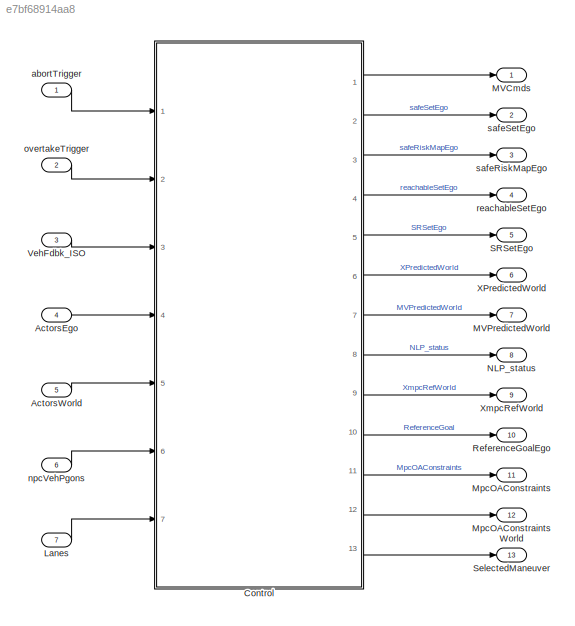
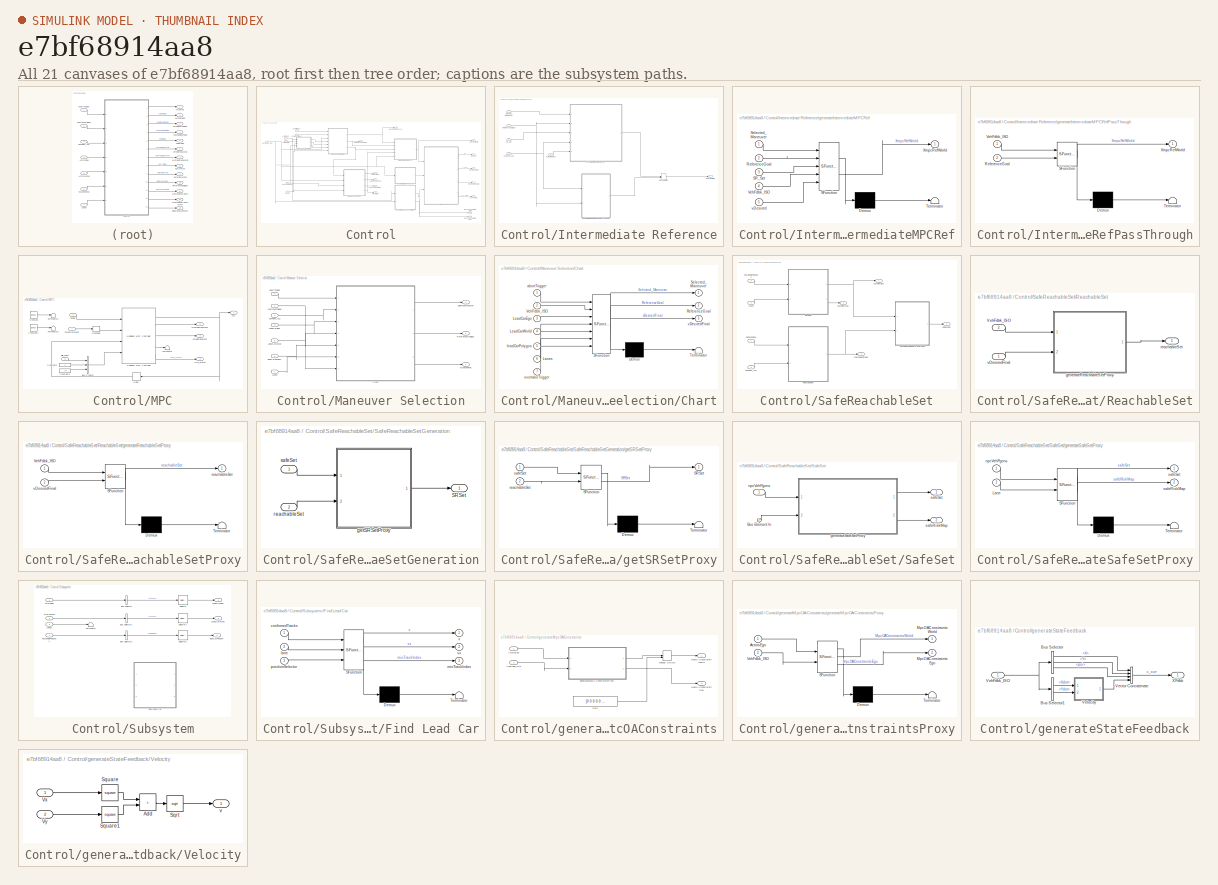
[diagram: thumbnail index - all 21 canvases of the model, root first then tree order]
MODEL slx_e7bf68914aa8
KIND model
CONFIG AbsTol = auto
CONFIG EnableMultiTasking = off
CONFIG FixedStep = controllerSampleTime
CONFIG MaxStep = auto
CONFIG MinStep = auto
CONFIG RelTol = 1e-3
CONFIG SampleTimeConstraint = Unconstrained
CONFIG SolverName = FixedStepDiscrete
CONFIG StartTime = 0.0
CONFIG StopTime = 10.0
BLOCK [Inport] ActorsEgo
  BusOutputAsStruct = on
  OutDataTypeStr = Bus: BusActors
  Port = 4
  PortDimensions = [1 1]
BLOCK [Inport] ActorsWorld
  BusOutputAsStruct = on
  OutDataTypeStr = Bus: BusVehicleToWorldActors
  Port = 5
  PortDimensions = [1 1]
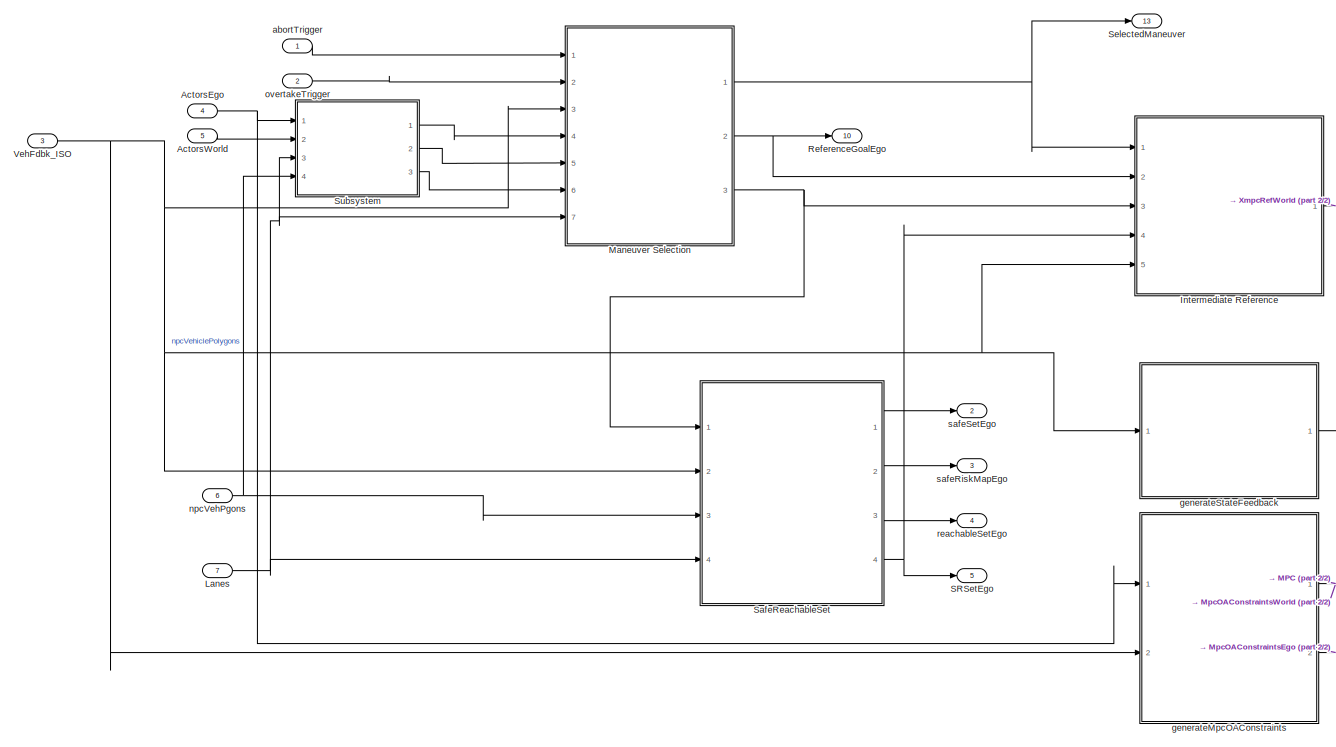
[diagram: Control - part 1/2, center side, full height]
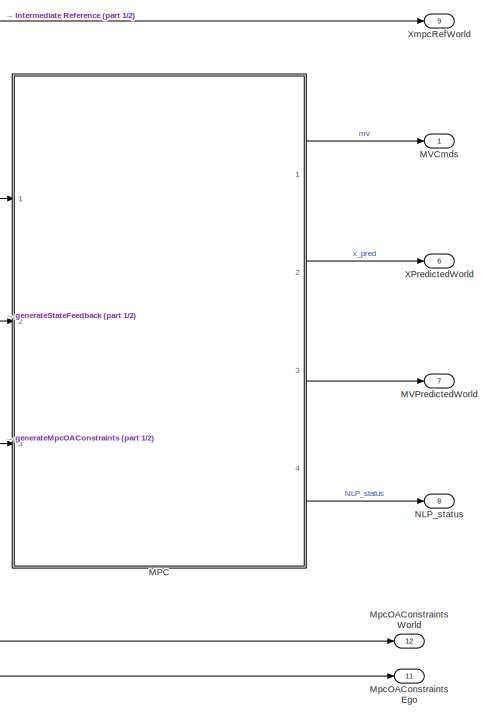
[diagram: Control - part 2/2, right side, full height]
BLOCK [SubSystem] Control
  Ports = [7, 13]
  RequestExecContextInheritance = off
BLOCK [Inport] Control/ActorsEgo
  Port = 4
BLOCK [Inport] Control/ActorsWorld
  Port = 5
BLOCK [SubSystem] Control/Intermediate Reference
  Ports = [5, 1]
  RequestExecContextInheritance = off
BLOCK [ManualSwitch] Control/Intermediate Reference/Manual Switch
BLOCK [Inport] Control/Intermediate Reference/ReferenceGoalEgo
  Port = 2
BLOCK [Inport] Control/Intermediate Reference/SR_Set
  Port = 4
BLOCK [Inport] Control/Intermediate Reference/Selected_Maneuver
BLOCK [Inport] Control/Intermediate Reference/VehFdbk_ISO
  Port = 5
BLOCK [Outport] Control/Intermediate Reference/XmpcRefWorld
BLOCK [SubSystem] Control/Intermediate Reference/generateIntermediateMPCRef
  ErrorFcn = Stateflow.Translate.translate
  PermitHierarchicalResolution = ExplicitOnly
  Ports = [5, 1]
  RequestExecContextInheritance = off
  SFBlockType = MATLAB Function
  TreatAsAtomicUnit = on
BLOCK [Demux] Control/Intermediate Reference/generateIntermediateMPCRef/ Demux 
  Outputs = 1
  Ports = [1, 1]
BLOCK [S-Function] Control/Intermediate Reference/generateIntermediateMPCRef/ SFunction 
  EnableBusSupport = on
  FunctionName = sf_sfun
  PortCounts = [5 2]
  Ports = [5, 2]
  SFcnIsStateOwnerBlock = off
  SFunctionDeploymentMode = off
  Tag = Stateflow S-Function 6
BLOCK [Terminator] Control/Intermediate Reference/generateIntermediateMPCRef/ Terminator 
BLOCK [Inport] Control/Intermediate Reference/generateIntermediateMPCRef/ReferenceGoal
  Port = 2
BLOCK [Inport] Control/Intermediate Reference/generateIntermediateMPCRef/SR_Set
  Port = 3
BLOCK [Inport] Control/Intermediate Reference/generateIntermediateMPCRef/Selected_Maneuver
BLOCK [Inport] Control/Intermediate Reference/generateIntermediateMPCRef/VehFdbk_ISO
  Port = 4
BLOCK [Outport] Control/Intermediate Reference/generateIntermediateMPCRef/XmpcRefWorld
BLOCK [Inport] Control/Intermediate Reference/generateIntermediateMPCRef/vDesired
  Port = 5
BLOCK [SubSystem] Control/Intermediate Reference/generateIntermediateMPCRefPassThrough
  Commented = on
  ErrorFcn = Stateflow.Translate.translate
  PermitHierarchicalResolution = ExplicitOnly
  Ports = [2, 1]
  RequestExecContextInheritance = off
  SFBlockType = MATLAB Function
  TreatAsAtomicUnit = on
BLOCK [Demux] Control/Intermediate Reference/generateIntermediateMPCRefPassThrough/ Demux 
  Outputs = 1
  Ports = [1, 1]
BLOCK [S-Function] Control/Intermediate Reference/generateIntermediateMPCRefPassThrough/ SFunction 
  EnableBusSupport = on
  FunctionName = sf_sfun
  PortCounts = [2 2]
  Ports = [2, 2]
  SFcnIsStateOwnerBlock = off
  SFunctionDeploymentMode = off
  Tag = Stateflow S-Function 7
BLOCK [Terminator] Control/Intermediate Reference/generateIntermediateMPCRefPassThrough/ Terminator 
BLOCK [Inport] Control/Intermediate Reference/generateIntermediateMPCRefPassThrough/ReferenceGoal
  Port = 2
BLOCK [Inport] Control/Intermediate Reference/generateIntermediateMPCRefPassThrough/VehFdbk_ISO
BLOCK [Outport] Control/Intermediate Reference/generateIntermediateMPCRefPassThrough/XmpcRefWorld
BLOCK [Inport] Control/Intermediate Reference/vDesiredFinal
  Port = 3
BLOCK [Inport] Control/Lanes
  Port = 7
BLOCK [SubSystem] Control/MPC
  Ports = [3, 4]
  RequestExecContextInheritance = off
BLOCK [BusCreator] Control/MPC/Bus Creator
  DisplayOption = bar
  InheritFromInputs = off
  Inputs = 3
  NonVirtualBus = on
  OutDataTypeStr = Bus: MPCparams
  Ports = [3, 1]
BLOCK [Constant] Control/MPC/Constant
  Value = [0 0 0 0]
BLOCK [Constant] Control/MPC/Constant1
  Value = [0 0 0 0]
BLOCK [Constant] Control/MPC/Constant2
  Value = L
BLOCK [Constant] Control/MPC/Constant3
  Value = l_F
BLOCK [Delay] Control/MPC/Delay
  DelayLength = 1
  InputPortMap = u0
  Ports = [1, 1]
BLOCK [Outport] Control/MPC/MVPredictedWorld
  Port = 3
BLOCK [Outport] Control/MPC/NLP_status
  Port = 4
BLOCK [Reference] Control/MPC/Nonlinear MPC Controller  REF=mpclib/Nonlinear MPC Controller  (lib defined in mdl_ae329e0e0455)
  Ports = [4, 5]
  SCDEnableBlockLinearizationSpecification = on
  SourceBlock = mpclib/Nonlinear MPC Controller
  SourceProductBaseCode = MP
  SourceType = NonlinearMPC
BLOCK [Reshape] Control/MPC/Reshape
  OutputDimensionality = Row vector (2-D)
  Ports = [1, 1]
BLOCK [Terminator] Control/MPC/Terminator
BLOCK [Terminator] Control/MPC/Terminator1
BLOCK [Terminator] Control/MPC/Terminator2
BLOCK [Inport] Control/MPC/XFdbk
  Port = 2
BLOCK [Outport] Control/MPC/XPredictedWorld
  Port = 2
BLOCK [Inport] Control/MPC/XmpcRefWorld
BLOCK [Inport] Control/MPC/ellip_coeff
  Port = 3
BLOCK [Outport] Control/MPC/mv
BLOCK [Outport] Control/MVCmds
BLOCK [Outport] Control/MVPredictedWorld
  Port = 7
BLOCK [SubSystem] Control/Maneuver Selection
  Ports = [7, 3]
  RequestExecContextInheritance = off
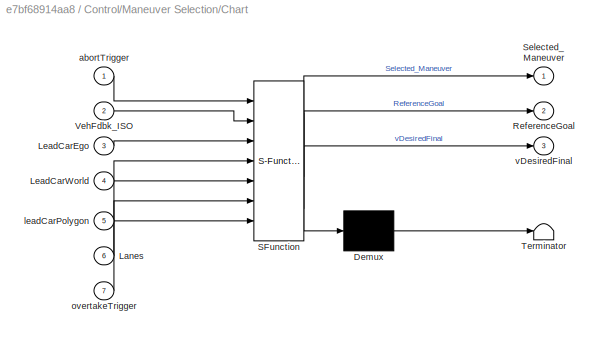
BLOCK [SubSystem] Control/Maneuver Selection/Chart
  ErrorFcn = Stateflow.Translate.translate
  PermitHierarchicalResolution = ExplicitOnly
  PortSchema = {"entries":[{"content":{"sides":[{"content":{"connectorIds":["In1","In7","In2","In3","In4","In5","In6"]},"type":"ConnectorPlacement.EquallySpacedRectSide","uuid":"0ec3284f-e4d1-4fcf-868c-49b24c185a74"},{"content":{"connectorIds":["Out1","Out2","Out3"],"side":"RIGHT"},"type":"ConnectorPlacement.EquallySpacedRectSide","uuid":"f716af92-5763-46ed-adf9-d401eac52e97"},{"content":{"connectorIds":[],"side...<+434ch>
  Ports = [7, 3]
  RequestExecContextInheritance = off
  SFBlockType = Chart
  TreatAsAtomicUnit = on
BLOCK [Demux] Control/Maneuver Selection/Chart/ Demux 
  Outputs = 1
  Ports = [1, 1]
BLOCK [S-Function] Control/Maneuver Selection/Chart/ SFunction 
  EnableBusSupport = on
  FunctionName = sf_sfun
  Parameters = distOvertakeTrigger,distSafeLaneKeep,distSafeOvertakeZone,v_des
  PortCounts = [7 4]
  Ports = [7, 4]
  SFcnIsStateOwnerBlock = off
  SFunctionDeploymentMode = off
  Tag = Stateflow S-Function 3
BLOCK [Terminator] Control/Maneuver Selection/Chart/ Terminator 
BLOCK [Inport] Control/Maneuver Selection/Chart/Lanes
  Port = 6
BLOCK [Inport] Control/Maneuver Selection/Chart/LeadCarEgo
  Port = 3
BLOCK [Inport] Control/Maneuver Selection/Chart/LeadCarWorld
  Port = 4
BLOCK [Outport] Control/Maneuver Selection/Chart/ReferenceGoal
  Port = 2
BLOCK [Outport] Control/Maneuver Selection/Chart/Selected_Maneuver
BLOCK [Inport] Control/Maneuver Selection/Chart/VehFdbk_ISO
  Port = 2
BLOCK [Inport] Control/Maneuver Selection/Chart/abortTrigger
BLOCK [Inport] Control/Maneuver Selection/Chart/leadCarPolygon
  Port = 5
BLOCK [Inport] Control/Maneuver Selection/Chart/overtakeTrigger
  Port = 7
BLOCK [Outport] Control/Maneuver Selection/Chart/vDesiredFinal
  Port = 3
BLOCK [Inport] Control/Maneuver Selection/Lanes
  Port = 7
BLOCK [Inport] Control/Maneuver Selection/LeadCarEgo
  Port = 4
BLOCK [Inport] Control/Maneuver Selection/LeadCarWorld
  Port = 5
BLOCK [Outport] Control/Maneuver Selection/ReferenceGoalEgo
  Port = 2
BLOCK [Outport] Control/Maneuver Selection/SelectedManeuver
BLOCK [Inport] Control/Maneuver Selection/VehFdbk_ISO
  Port = 3
BLOCK [Inport] Control/Maneuver Selection/abortTrigger
BLOCK [Inport] Control/Maneuver Selection/leadCarPolygon
  Port = 6
BLOCK [Inport] Control/Maneuver Selection/overtakeTrigger
  Port = 2
BLOCK [Outport] Control/Maneuver Selection/vDesiredFinal
  Port = 3
BLOCK [Outport] Control/MpcOAConstraintsEgo
  Port = 11
BLOCK [Outport] Control/MpcOAConstraintsWorld
  Port = 12
BLOCK [Outport] Control/NLP_status
  Port = 8
BLOCK [Outport] Control/ReferenceGoalEgo
  Port = 10
BLOCK [Outport] Control/SRSetEgo
  Port = 5
BLOCK [SubSystem] Control/SafeReachableSet
  Ports = [4, 4]
  RequestExecContextInheritance = off
BLOCK [Inport] Control/SafeReachableSet/Lanes
  Port = 4
BLOCK [SubSystem] Control/SafeReachableSet/ReachableSet
  Ports = [2, 1]
  RequestExecContextInheritance = off
BLOCK [Inport] Control/SafeReachableSet/ReachableSet/VehFdbk_ISO
  Port = 2
BLOCK [SubSystem] Control/SafeReachableSet/ReachableSet/generateReachableSetProxy
  ErrorFcn = Stateflow.Translate.translate
  PermitHierarchicalResolution = ExplicitOnly
  Ports = [2, 1]
  RequestExecContextInheritance = off
  SFBlockType = MATLAB Function
  TreatAsAtomicUnit = on
BLOCK [Demux] Control/SafeReachableSet/ReachableSet/generateReachableSetProxy/ Demux 
  Outputs = 1
  Ports = [1, 1]
BLOCK [S-Function] Control/SafeReachableSet/ReachableSet/generateReachableSetProxy/ SFunction 
  EnableBusSupport = on
  FunctionName = sf_sfun
  Parameters = L,ReachableSetCurveResolution,egoAccMax,egoAccMin,egoSteerAngMax,egoSteerAngMin,l_F,tf,v_des
  PortCounts = [2 2]
  Ports = [2, 2]
  SFcnIsStateOwnerBlock = off
  SFunctionDeploymentMode = off
  Tag = Stateflow S-Function 4
BLOCK [Terminator] Control/SafeReachableSet/ReachableSet/generateReachableSetProxy/ Terminator 
BLOCK [Inport] Control/SafeReachableSet/ReachableSet/generateReachableSetProxy/VehFdbk_ISO
BLOCK [Outport] Control/SafeReachableSet/ReachableSet/generateReachableSetProxy/reachableSet
BLOCK [Inport] Control/SafeReachableSet/ReachableSet/generateReachableSetProxy/vDesiredFinal
  Port = 2
BLOCK [Outport] Control/SafeReachableSet/ReachableSet/reachableSet
BLOCK [Inport] Control/SafeReachableSet/ReachableSet/vDesiredFinal
BLOCK [Outport] Control/SafeReachableSet/SRSetEgo
  Port = 4
BLOCK [SubSystem] Control/SafeReachableSet/SafeReachableSetGeneration
  Ports = [2, 1]
  RequestExecContextInheritance = off
BLOCK [Outport] Control/SafeReachableSet/SafeReachableSetGeneration/SRSet
BLOCK [SubSystem] Control/SafeReachableSet/SafeReachableSetGeneration/getSRSetProxy
  ErrorFcn = Stateflow.Translate.translate
  PermitHierarchicalResolution = ExplicitOnly
  Ports = [2, 1]
  RequestExecContextInheritance = off
  SFBlockType = MATLAB Function
  TreatAsAtomicUnit = on
BLOCK [Demux] Control/SafeReachableSet/SafeReachableSetGeneration/getSRSetProxy/ Demux 
  Outputs = 1
  Ports = [1, 1]
BLOCK [S-Function] Control/SafeReachableSet/SafeReachableSetGeneration/getSRSetProxy/ SFunction 
  EnableBusSupport = on
  FunctionName = sf_sfun
  Parameters = XSenseRangeArrSize,YSenseRangeArrSize
  PortCounts = [2 2]
  Ports = [2, 2]
  SFcnIsStateOwnerBlock = off
  SFunctionDeploymentMode = off
  Tag = Stateflow S-Function 5
BLOCK [Terminator] Control/SafeReachableSet/SafeReachableSetGeneration/getSRSetProxy/ Terminator 
BLOCK [Outport] Control/SafeReachableSet/SafeReachableSetGeneration/getSRSetProxy/SRSet
BLOCK [Inport] Control/SafeReachableSet/SafeReachableSetGeneration/getSRSetProxy/reachableSet
  Port = 2
BLOCK [Inport] Control/SafeReachableSet/SafeReachableSetGeneration/getSRSetProxy/safeSet
BLOCK [Inport] Control/SafeReachableSet/SafeReachableSetGeneration/reachableSet
  Port = 2
BLOCK [Inport] Control/SafeReachableSet/SafeReachableSetGeneration/safeSet
BLOCK [SubSystem] Control/SafeReachableSet/SafeSet
  Ports = [2, 2]
  RequestExecContextInheritance = off
BLOCK [Inport] Control/SafeReachableSet/SafeSet/Bus Element In
  Port = 2
BLOCK [SubSystem] Control/SafeReachableSet/SafeSet/generateSafeSetProxy
  ErrorFcn = Stateflow.Translate.translate
  PermitHierarchicalResolution = ExplicitOnly
  Ports = [2, 2]
  RequestExecContextInheritance = off
  SFBlockType = MATLAB Function
  TreatAsAtomicUnit = on
BLOCK [Demux] Control/SafeReachableSet/SafeSet/generateSafeSetProxy/ Demux 
  Outputs = 1
  Ports = [1, 1]
BLOCK [S-Function] Control/SafeReachableSet/SafeSet/generateSafeSetProxy/ SFunction 
  EnableBusSupport = on
  FunctionName = sf_sfun
  Parameters = RiskMaxValue,RiskValueThreshold,SenseResolution,XSenseRange,XSenseRangeArrSize,YSenseRange,YSenseRangeArrSize,eetaRoad
  PortCounts = [2 3]
  Ports = [2, 3]
  SFcnIsStateOwnerBlock = off
  SFunctionDeploymentMode = off
  Tag = Stateflow S-Function 1
BLOCK [Terminator] Control/SafeReachableSet/SafeSet/generateSafeSetProxy/ Terminator 
BLOCK [Inport] Control/SafeReachableSet/SafeSet/generateSafeSetProxy/Lane
  Port = 2
BLOCK [Inport] Control/SafeReachableSet/SafeSet/generateSafeSetProxy/npcVehPgons
BLOCK [Outport] Control/SafeReachableSet/SafeSet/generateSafeSetProxy/safeRiskMap
  Port = 2
BLOCK [Outport] Control/SafeReachableSet/SafeSet/generateSafeSetProxy/safeSet
BLOCK [Inport] Control/SafeReachableSet/SafeSet/npcVehPgons
BLOCK [Outport] Control/SafeReachableSet/SafeSet/safeRiskMap
  Port = 2
BLOCK [Outport] Control/SafeReachableSet/SafeSet/safeSet
BLOCK [Inport] Control/SafeReachableSet/VehFdbk_ISO
  Port = 2
BLOCK [Inport] Control/SafeReachableSet/npcVehiclePolygons
  Port = 3
BLOCK [Outport] Control/SafeReachableSet/reachableSetEgo
  Port = 3
BLOCK [Outport] Control/SafeReachableSet/safeRiskMap
  Port = 2
BLOCK [Outport] Control/SafeReachableSet/safeSetEgo
BLOCK [Inport] Control/SafeReachableSet/vDesiredFinal
BLOCK [Outport] Control/SelectedManeuver
  Port = 13
BLOCK [SubSystem] Control/Subsystem
  Ports = [4, 3]
  RequestExecContextInheritance = off
BLOCK [Inport] Control/Subsystem/ActorsEgo
BLOCK [Inport] Control/Subsystem/ActorsWorld
  Port = 2
BLOCK [BusSelector] Control/Subsystem/Bus Selector
  OutputSignals = Actors
  Ports = [1, 1]
BLOCK [BusSelector] Control/Subsystem/Bus Selector1
  OutputSignals = Actors
  Ports = [1, 1]
BLOCK [BusSelector] Control/Subsystem/Bus Selector2
  OutputSignals = VehPgon
  Ports = [1, 1]
BLOCK [SubSystem] Control/Subsystem/Find Lead Car
  Commented = on
  ErrorFcn = Stateflow.Translate.translate
  PermitHierarchicalResolution = ExplicitOnly
  Ports = [3, 3]
  RequestExecContextInheritance = off
  SFBlockType = MATLAB Function
  TreatAsAtomicUnit = on
BLOCK [Demux] Control/Subsystem/Find Lead Car/ Demux 
  Outputs = 1
  Ports = [1, 1]
BLOCK [S-Function] Control/Subsystem/Find Lead Car/ SFunction 
  EnableBusSupport = on
  FunctionName = sf_sfun
  PortCounts = [3 4]
  Ports = [3, 4]
  SFcnIsStateOwnerBlock = off
  SFunctionDeploymentMode = off
  Tag = Stateflow S-Function 2
BLOCK [Terminator] Control/Subsystem/Find Lead Car/ Terminator 
BLOCK [Inport] Control/Subsystem/Find Lead Car/confirmedTracks
BLOCK [Inport] Control/Subsystem/Find Lead Car/lane
  Port = 2
BLOCK [Outport] Control/Subsystem/Find Lead Car/mioTrackIndex
  Port = 3
  VectorParamsAs1DForOutWhenUnconnected = off
BLOCK [Inport] Control/Subsystem/Find Lead Car/positionSelector
  Port = 3
BLOCK [Outport] Control/Subsystem/Find Lead Car/vx
  Port = 2
  VectorParamsAs1DForOutWhenUnconnected = off
BLOCK [Outport] Control/Subsystem/Find Lead Car/x
  VectorParamsAs1DForOutWhenUnconnected = off
BLOCK [Inport] Control/Subsystem/Lanes
  Port = 3
BLOCK [Outport] Control/Subsystem/LeadCarEgo
BLOCK [Outport] Control/Subsystem/LeadCarWorld
  Port = 2
BLOCK [Selector] Control/Subsystem/Selector
  IndexOptions = Index vector (dialog)
  Indices = [1]
  InputPortWidth = 2
  OutputSizes = 1
  Ports = [1, 1]
BLOCK [Selector] Control/Subsystem/Selector1
  IndexOptions = Index vector (dialog)
  Indices = [1]
  InputPortWidth = 2
  OutputSizes = 1
  Ports = [1, 1]
BLOCK [Selector] Control/Subsystem/Selector2
  IndexOptions = Index vector (dialog)
  Indices = [1]
  InputPortWidth = 2
  OutputSizes = 1
  Ports = [1, 1]
BLOCK [Terminator] Control/Subsystem/Terminator
BLOCK [Outport] Control/Subsystem/leadCarPolygon
  Port = 3
BLOCK [Inport] Control/Subsystem/npcVehiclePolygons
  Port = 4
BLOCK [Inport] Control/VehFdbk_ISO
  Port = 3
BLOCK [Outport] Control/XPredictedWorld
  Port = 6
BLOCK [Outport] Control/XmpcRefWorld
  Port = 9
BLOCK [Inport] Control/abortTrigger
BLOCK [SubSystem] Control/generateMpcOAConstraints
  Ports = [2, 2]
  RequestExecContextInheritance = off
BLOCK [Inport] Control/generateMpcOAConstraints/ActorsEgo
BLOCK [ManualSwitch] Control/generateMpcOAConstraints/Manual Switch
BLOCK [Outport] Control/generateMpcOAConstraints/MpcOAConstraintsEgo
  Port = 2
BLOCK [Outport] Control/generateMpcOAConstraints/MpcOAConstraintsWorld
BLOCK [Inport] Control/generateMpcOAConstraints/VehFdbk_ISO
  Port = 2
BLOCK [Constant] Control/generateMpcOAConstraints/Zero
  OutDataTypeStr = Inherit: Inherit via back propagation
  Value = [0 0 0 0 0 obstcl_ellip_order ]
  VectorParams1D = off
BLOCK [SubSystem] Control/generateMpcOAConstraints/generateMpcOAConstraintsProxy
  ErrorFcn = Stateflow.Translate.translate
  PermitHierarchicalResolution = ExplicitOnly
  Ports = [2, 2]
  RequestExecContextInheritance = off
  SFBlockType = MATLAB Function
  TreatAsAtomicUnit = on
BLOCK [Demux] Control/generateMpcOAConstraints/generateMpcOAConstraintsProxy/ Demux 
  Outputs = 1
  Ports = [1, 1]
BLOCK [S-Function] Control/generateMpcOAConstraints/generateMpcOAConstraintsProxy/ SFunction 
  EnableBusSupport = on
  FunctionName = sf_sfun
  Parameters = egoVehLength,egoVehWidth,inflationFactorMpcOA,npcVehLength,npcVehWidth,obstcl_ellip_order
  PortCounts = [2 3]
  Ports = [2, 3]
  SFcnIsStateOwnerBlock = off
  SFunctionDeploymentMode = off
  Tag = Stateflow S-Function 8
BLOCK [Terminator] Control/generateMpcOAConstraints/generateMpcOAConstraintsProxy/ Terminator 
BLOCK [Inport] Control/generateMpcOAConstraints/generateMpcOAConstraintsProxy/ActorsEgo
BLOCK [Outport] Control/generateMpcOAConstraints/generateMpcOAConstraintsProxy/MpcOAConstraintsEgo
  Port = 2
BLOCK [Outport] Control/generateMpcOAConstraints/generateMpcOAConstraintsProxy/MpcOAConstraintsWorld
BLOCK [Inport] Control/generateMpcOAConstraints/generateMpcOAConstraintsProxy/VehFdbk_ISO
  Port = 2
BLOCK [SubSystem] Control/generateStateFeedback
  Ports = [1, 1]
  RequestExecContextInheritance = off
BLOCK [BusSelector] Control/generateStateFeedback/Bus Selector
  OutputSignals = Position.X,Position.Y,Orientation.psi
  Ports = [1, 3]
BLOCK [BusSelector] Control/generateStateFeedback/Bus Selector1
  OutputSignals = Velocity.Xdot,Velocity.Ydot
  Ports = [1, 2]
BLOCK [Concatenate] Control/generateStateFeedback/Vector Concatenate
  NumInputs = 4
  Ports = [4, 1]
BLOCK [Inport] Control/generateStateFeedback/VehFdbk_ISO
BLOCK [SubSystem] Control/generateStateFeedback/Velocity
  Ports = [2, 1]
  RequestExecContextInheritance = off
BLOCK [Sum] Control/generateStateFeedback/Velocity/Add
  IconShape = rectangular
  Ports = [2, 1]
BLOCK [Sqrt] Control/generateStateFeedback/Velocity/Sqrt
BLOCK [Math] Control/generateStateFeedback/Velocity/Square
  Operator = square
  Ports = [1, 1]
BLOCK [Math] Control/generateStateFeedback/Velocity/Square1
  Operator = square
  Ports = [1, 1]
BLOCK [Inport] Control/generateStateFeedback/Velocity/Vx
BLOCK [Inport] Control/generateStateFeedback/Velocity/Vy
  Port = 2
BLOCK [Outport] Control/generateStateFeedback/Velocity/v
BLOCK [Outport] Control/generateStateFeedback/XFdbk
BLOCK [Inport] Control/npcVehPgons
  Port = 6
BLOCK [Inport] Control/overtakeTrigger
  Port = 2
BLOCK [Outport] Control/reachableSetEgo
  Port = 4
BLOCK [Outport] Control/safeRiskMapEgo
  Port = 3
BLOCK [Outport] Control/safeSetEgo
  Port = 2
BLOCK [Inport] Lanes
  BusOutputAsStruct = on
  OutDataTypeStr = Bus: BusLaneBoundaries
  Port = 7
  PortDimensions = [1 1]
BLOCK [Outport] MVCmds
BLOCK [Outport] MVPredictedWorld
  Port = 7
BLOCK [Outport] MpcOAConstraints
  Port = 11
BLOCK [Outport] MpcOAConstraintsWorld
  Port = 12
BLOCK [Outport] NLP_status
  Port = 8
BLOCK [Outport] ReferenceGoalEgo
  BusOutputAsStruct = on
  OutDataTypeStr = Bus: Position2D
  Port = 10
BLOCK [Outport] SRSetEgo
  Port = 5
BLOCK [Outport] SelectedManeuver
  Port = 13
BLOCK [Inport] VehFdbk_ISO
  BusOutputAsStruct = on
  OutDataTypeStr = Bus: Veh_Fdbk
  Port = 3
BLOCK [Outport] XPredictedWorld
  Port = 6
BLOCK [Outport] XmpcRefWorld
  Port = 9
BLOCK [Inport] abortTrigger
  OutDataTypeStr = boolean
  PortDimensions = 1
BLOCK [Inport] npcVehPgons
  BusOutputAsStruct = on
  OutDataTypeStr = Bus: VehPgons
  Port = 6
BLOCK [Inport] overtakeTrigger
  OutDataTypeStr = boolean
  Port = 2
  PortDimensions = 1
BLOCK [Outport] reachableSetEgo
  Port = 4
BLOCK [Outport] safeRiskMapEgo
  Port = 3
BLOCK [Outport] safeSetEgo
  Port = 2
LINE ActorsEgo:1 -> Control:4
LINE ActorsWorld:1 -> Control:5
NET Control/ActorsEgo:1 -> Control/Subsystem:1, Control/generateMpcOAConstraints:1
LINE Control/ActorsWorld:1 -> Control/Subsystem:2
LINE Control/Intermediate Reference/Manual Switch:1 -> Control/Intermediate Reference/XmpcRefWorld:1
NET Control/Intermediate Reference/ReferenceGoalEgo:1 -> Control/Intermediate Reference/generateIntermediateMPCRef:2, Control/Intermediate Reference/generateIntermediateMPCRefPassThrough:2
LINE Control/Intermediate Reference/SR_Set:1 -> Control/Intermediate Reference/generateIntermediateMPCRef:3
LINE Control/Intermediate Reference/Selected_Maneuver:1 -> Control/Intermediate Reference/generateIntermediateMPCRef:1
NET Control/Intermediate Reference/VehFdbk_ISO:1 -> Control/Intermediate Reference/generateIntermediateMPCRef:4, Control/Intermediate Reference/generateIntermediateMPCRefPassThrough:1
LINE Control/Intermediate Reference/generateIntermediateMPCRef:1 -> Control/Intermediate Reference/Manual Switch:1
LINE Control/Intermediate Reference/generateIntermediateMPCRefPassThrough:1 -> Control/Intermediate Reference/Manual Switch:2
LINE Control/Intermediate Reference/vDesiredFinal:1 -> Control/Intermediate Reference/generateIntermediateMPCRef:5
NET Control/Intermediate Reference:1 -> Control/MPC:1, Control/XmpcRefWorld:1
NET Control/Lanes:1 -> Control/Maneuver Selection:7, Control/SafeReachableSet:4, Control/Subsystem:3
LINE Control/MPC/Bus Creator:1 -> Control/MPC/Nonlinear MPC Controller:4
LINE Control/MPC/Constant1:1 -> Control/MPC/Terminator2:1
LINE Control/MPC/Constant2:1 -> Control/MPC/Bus Creator:2
LINE Control/MPC/Constant3:1 -> Control/MPC/Bus Creator:3
LINE Control/MPC/Constant:1 -> Control/MPC/Terminator1:1
LINE Control/MPC/Delay:1 -> Control/MPC/Nonlinear MPC Controller:3
NET Control/MPC/Nonlinear MPC Controller:1 -> Control/MPC/Delay:1, Control/MPC/mv:1
LINE Control/MPC/Nonlinear MPC Controller:2 -> Control/MPC/MVPredictedWorld:1
LINE Control/MPC/Nonlinear MPC Controller:3 -> Control/MPC/XPredictedWorld:1
LINE Control/MPC/Nonlinear MPC Controller:4 -> Control/MPC/Terminator:1
LINE Control/MPC/Nonlinear MPC Controller:5 -> Control/MPC/NLP_status:1
LINE Control/MPC/Reshape:1 -> Control/MPC/Nonlinear MPC Controller:2
LINE Control/MPC/XFdbk:1 -> Control/MPC/Nonlinear MPC Controller:1
LINE Control/MPC/XmpcRefWorld:1 -> Control/MPC/Reshape:1
LINE Control/MPC/ellip_coeff:1 -> Control/MPC/Bus Creator:1
LINE Control/MPC:1 -> Control/MVCmds:1
LINE Control/MPC:2 -> Control/XPredictedWorld:1
LINE Control/MPC:3 -> Control/MVPredictedWorld:1
LINE Control/MPC:4 -> Control/NLP_status:1
LINE Control/Maneuver Selection/Chart:1 -> Control/Maneuver Selection/SelectedManeuver:1
LINE Control/Maneuver Selection/Chart:2 -> Control/Maneuver Selection/ReferenceGoalEgo:1
LINE Control/Maneuver Selection/Chart:3 -> Control/Maneuver Selection/vDesiredFinal:1
LINE Control/Maneuver Selection/Lanes:1 -> Control/Maneuver Selection/Chart:6
LINE Control/Maneuver Selection/LeadCarEgo:1 -> Control/Maneuver Selection/Chart:3
LINE Control/Maneuver Selection/LeadCarWorld:1 -> Control/Maneuver Selection/Chart:4
LINE Control/Maneuver Selection/VehFdbk_ISO:1 -> Control/Maneuver Selection/Chart:2
LINE Control/Maneuver Selection/abortTrigger:1 -> Control/Maneuver Selection/Chart:1
LINE Control/Maneuver Selection/leadCarPolygon:1 -> Control/Maneuver Selection/Chart:5
LINE Control/Maneuver Selection/overtakeTrigger:1 -> Control/Maneuver Selection/Chart:7
NET Control/Maneuver Selection:1 -> Control/Intermediate Reference:1, Control/SelectedManeuver:1
NET Control/Maneuver Selection:2 -> Control/Intermediate Reference:2, Control/ReferenceGoalEgo:1
NET Control/Maneuver Selection:3 -> Control/Intermediate Reference:3, Control/SafeReachableSet:1
LINE Control/SafeReachableSet/Lanes:1 -> Control/SafeReachableSet/SafeSet:2
LINE Control/SafeReachableSet/ReachableSet/VehFdbk_ISO:1 -> Control/SafeReachableSet/ReachableSet/generateReachableSetProxy:1
LINE Control/SafeReachableSet/ReachableSet/generateReachableSetProxy:1 -> Control/SafeReachableSet/ReachableSet/reachableSet:1
LINE Control/SafeReachableSet/ReachableSet/vDesiredFinal:1 -> Control/SafeReachableSet/ReachableSet/generateReachableSetProxy:2
NET Control/SafeReachableSet/ReachableSet:1 -> Control/SafeReachableSet/SafeReachableSetGeneration:2, Control/SafeReachableSet/reachableSetEgo:1
LINE Control/SafeReachableSet/SafeReachableSetGeneration/getSRSetProxy:1 -> Control/SafeReachableSet/SafeReachableSetGeneration/SRSet:1
LINE Control/SafeReachableSet/SafeReachableSetGeneration/reachableSet:1 -> Control/SafeReachableSet/SafeReachableSetGeneration/getSRSetProxy:2
LINE Control/SafeReachableSet/SafeReachableSetGeneration/safeSet:1 -> Control/SafeReachableSet/SafeReachableSetGeneration/getSRSetProxy:1
LINE Control/SafeReachableSet/SafeReachableSetGeneration:1 -> Control/SafeReachableSet/SRSetEgo:1
LINE Control/SafeReachableSet/SafeSet/Bus Element In:1 -> Control/SafeReachableSet/SafeSet/generateSafeSetProxy:2
LINE Control/SafeReachableSet/SafeSet/generateSafeSetProxy:1 -> Control/SafeReachableSet/SafeSet/safeSet:1
LINE Control/SafeReachableSet/SafeSet/generateSafeSetProxy:2 -> Control/SafeReachableSet/SafeSet/safeRiskMap:1
LINE Control/SafeReachableSet/SafeSet/npcVehPgons:1 -> Control/SafeReachableSet/SafeSet/generateSafeSetProxy:1
NET Control/SafeReachableSet/SafeSet:1 -> Control/SafeReachableSet/SafeReachableSetGeneration:1, Control/SafeReachableSet/safeSetEgo:1
LINE Control/SafeReachableSet/SafeSet:2 -> Control/SafeReachableSet/safeRiskMap:1
LINE Control/SafeReachableSet/VehFdbk_ISO:1 -> Control/SafeReachableSet/ReachableSet:2
LINE Control/SafeReachableSet/npcVehiclePolygons:1 -> Control/SafeReachableSet/SafeSet:1
LINE Control/SafeReachableSet/vDesiredFinal:1 -> Control/SafeReachableSet/ReachableSet:1
LINE Control/SafeReachableSet:1 -> Control/safeSetEgo:1
LINE Control/SafeReachableSet:2 -> Control/safeRiskMapEgo:1
LINE Control/SafeReachableSet:3 -> Control/reachableSetEgo:1
NET Control/SafeReachableSet:4 -> Control/Intermediate Reference:4, Control/SRSetEgo:1
LINE Control/Subsystem/ActorsEgo:1 -> Control/Subsystem/Bus Selector:1
LINE Control/Subsystem/ActorsWorld:1 -> Control/Subsystem/Bus Selector1:1
LINE Control/Subsystem/Bus Selector1:1 -> Control/Subsystem/Selector1:1
LINE Control/Subsystem/Bus Selector2:1 -> Control/Subsystem/Selector2:1
LINE Control/Subsystem/Bus Selector:1 -> Control/Subsystem/Selector:1
LINE Control/Subsystem/Lanes:1 -> Control/Subsystem/Terminator:1
LINE Control/Subsystem/Selector1:1 -> Control/Subsystem/LeadCarWorld:1
LINE Control/Subsystem/Selector2:1 -> Control/Subsystem/leadCarPolygon:1
LINE Control/Subsystem/Selector:1 -> Control/Subsystem/LeadCarEgo:1
LINE Control/Subsystem/npcVehiclePolygons:1 -> Control/Subsystem/Bus Selector2:1
LINE Control/Subsystem:1 -> Control/Maneuver Selection:4
LINE Control/Subsystem:2 -> Control/Maneuver Selection:5
LINE Control/Subsystem:3 -> Control/Maneuver Selection:6
NET Control/VehFdbk_ISO:1 -> Control/Intermediate Reference:5, Control/Maneuver Selection:3, Control/SafeReachableSet:2, Control/generateMpcOAConstraints:2, Control/generateStateFeedback:1
LINE Control/abortTrigger:1 -> Control/Maneuver Selection:1
LINE Control/generateMpcOAConstraints/ActorsEgo:1 -> Control/generateMpcOAConstraints/generateMpcOAConstraintsProxy:1
LINE Control/generateMpcOAConstraints/Manual Switch:1 -> Control/generateMpcOAConstraints/MpcOAConstraintsWorld:1
LINE Control/generateMpcOAConstraints/VehFdbk_ISO:1 -> Control/generateMpcOAConstraints/generateMpcOAConstraintsProxy:2
LINE Control/generateMpcOAConstraints/Zero:1 -> Control/generateMpcOAConstraints/Manual Switch:2
LINE Control/generateMpcOAConstraints/generateMpcOAConstraintsProxy:1 -> Control/generateMpcOAConstraints/Manual Switch:1
LINE Control/generateMpcOAConstraints/generateMpcOAConstraintsProxy:2 -> Control/generateMpcOAConstraints/MpcOAConstraintsEgo:1
NET Control/generateMpcOAConstraints:1 -> Control/MPC:3, Control/MpcOAConstraintsWorld:1
LINE Control/generateMpcOAConstraints:2 -> Control/MpcOAConstraintsEgo:1
LINE Control/generateStateFeedback/Bus Selector1:1 -> Control/generateStateFeedback/Velocity:1
LINE Control/generateStateFeedback/Bus Selector1:2 -> Control/generateStateFeedback/Velocity:2
LINE Control/generateStateFeedback/Bus Selector:1 -> Control/generateStateFeedback/Vector Concatenate:1
LINE Control/generateStateFeedback/Bus Selector:2 -> Control/generateStateFeedback/Vector Concatenate:2
LINE Control/generateStateFeedback/Bus Selector:3 -> Control/generateStateFeedback/Vector Concatenate:3
LINE Control/generateStateFeedback/Vector Concatenate:1 -> Control/generateStateFeedback/XFdbk:1
NET Control/generateStateFeedback/VehFdbk_ISO:1 -> Control/generateStateFeedback/Bus Selector1:1, Control/generateStateFeedback/Bus Selector:1
LINE Control/generateStateFeedback/Velocity/Add:1 -> Control/generateStateFeedback/Velocity/Sqrt:1
LINE Control/generateStateFeedback/Velocity/Sqrt:1 -> Control/generateStateFeedback/Velocity/v:1
LINE Control/generateStateFeedback/Velocity/Square1:1 -> Control/generateStateFeedback/Velocity/Add:2
LINE Control/generateStateFeedback/Velocity/Square:1 -> Control/generateStateFeedback/Velocity/Add:1
LINE Control/generateStateFeedback/Velocity/Vx:1 -> Control/generateStateFeedback/Velocity/Square:1
LINE Control/generateStateFeedback/Velocity/Vy:1 -> Control/generateStateFeedback/Velocity/Square1:1
LINE Control/generateStateFeedback/Velocity:1 -> Control/generateStateFeedback/Vector Concatenate:4
LINE Control/generateStateFeedback:1 -> Control/MPC:2
NET Control/npcVehPgons:1 -> Control/SafeReachableSet:3, Control/Subsystem:4
LINE Control/overtakeTrigger:1 -> Control/Maneuver Selection:2
LINE Control:1 -> MVCmds:1
LINE Control:10 -> ReferenceGoalEgo:1
LINE Control:11 -> MpcOAConstraints:1
LINE Control:12 -> MpcOAConstraintsWorld:1
LINE Control:13 -> SelectedManeuver:1
LINE Control:2 -> safeSetEgo:1
LINE Control:3 -> safeRiskMapEgo:1
LINE Control:4 -> reachableSetEgo:1
LINE Control:5 -> SRSetEgo:1
LINE Control:6 -> XPredictedWorld:1
LINE Control:7 -> MVPredictedWorld:1
LINE Control:8 -> NLP_status:1
LINE Control:9 -> XmpcRefWorld:1
LINE Lanes:1 -> Control:7
LINE VehFdbk_ISO:1 -> Control:3
LINE abortTrigger:1 -> Control:1
LINE npcVehPgons:1 -> Control:6
LINE overtakeTrigger:1 -> Control:2
note: NET lines group one-source signal fan-out (src -> all destinations, sorted); 1:1 wires keep LINE
CHART Control/SafeReachableSet/SafeSet/generateSafeSetProxy states=1 transitions=1
  STATE_LABEL 'eML_blk_kernel()'
  STATE_LABEL "SCRIPT:\nfunction [safeSet, safeRiskMap] = fcn(npcVehPgons, Lane, YSenseRangeArrSize, XSenseRangeArrSize, YSenseRange, XSenseRange, SenseResolution, RiskMaxValue,  RiskValueThreshold, eetaRoad)\nsafeRiskMap = zeros(XSenseRangeArrSize,YSenseRangeArrSize);\nsafeSet = zeros(XSenseRangeArrSize*YSenseRangeArrSize, 2);\ncoder.extrinsic('generateSafeSet')\n[safeSet, safeRiskMap] = generateSafeSet(npcVehPgons,...<+133ch>"
CHART Control/Subsystem/Find Lead Car states=1 transitions=1
  STATE_LABEL 'eML_blk_kernel()'
  STATE_LABEL "SCRIPT:\nfunction [x,vx,mioTrackIndex] = findLeadCar(confirmedTracks, lane, positionSelector)\n% This function finds the lead car: a car in front of the ego car that\n% satisfies all the criteria below:\n% * Within the ego car's lane.\n% * In front of the ego car.\n% * Closest to the ego car.\n\n% Note: If you change state definition, change the following:\n%       State = [x;vx;y;vy;z;vz] (3D constant vel...<+1802ch>"
CHART Control/Maneuver Selection/Chart states=9 transitions=11
  STATE_LABEL 'LaneKeeping\nSelected_Maneuver = CurrentManeuver.LaneKeep;\nReferenceGoal.X = distSafeLaneKeep;\n[ReferenceGoal.Y, LaneIndexY] = getfinalRefY(Lanes,ReferenceGoal.X );\nReferenceGoal.X = Lanes.LaneBoundaries(6).Coordinates(LaneIndexY,1);\nvDesiredFinal = v_des;\n'
  STATE_LABEL 'Overtaking\n\nSelected_Maneuver = CurrentManeuver.Overtake;\n'
  STATE_LABEL 'Overtaking\nReferenceGoal.X = leadCarPolygon.X(2,1) + distSafeOvertakeZone\n[ReferenceGoal.Y, LaneIndexY] = getfinalRefY(Lanes,ReferenceGoal.X );\nReferenceGoal.X = Lanes.LaneBoundaries(6).Coordinates(LaneIndexY,1);\nvDesiredFinal = v_des;'
  STATE_LABEL 'OvertakeComplete\nNoOvertakeAttempt = 0;'
  STATE_LABEL '[checkOvertakeSuccess(VehFdbk_ISO,LeadCarEgo,leadCarPolygon)]'
  STATE_LABEL 'Overtaking\nReferenceGoal.X = leadCarPolygon.X(2,1) + distSafeOvertakeZone\n[ReferenceGoal.Y, LaneIndexY] = getfinalRefY(Lanes,ReferenceGoal.X );\nReferenceGoal.X = Lanes.LaneBoundaries(6).Coordinates(LaneIndexY,1);\nvDesiredFinal = v_des;'
  STATE_LABEL 'OvertakeComplete\nNoOvertakeAttempt = 0;'
  STATE_LABEL 'overtakeComplete = checkOvertakeSuccess(VehFdbk, OvertakenLeadCar,leadCarPgon)'
  STATE_LABEL 'SCRIPT:\nfunction overtakeComplete = checkOvertakeSuccess(VehFdbk, OvertakenLeadCar,leadCarPgon)\n\nif leadCarPgon.X(2,1) < 0 &&...\n        Lanes.LaneBoundaries(6).LateralOffset < 0 &&...\n        Lanes.LaneBoundaries(5).LateralOffset > 0\n    \n    overtakeComplete = true;\nelse\n    overtakeComplete = false;\nend'
  STATE_LABEL 'FollowLeadCar\nSelected_Maneuver = CurrentManeuver.FollowLead;\nReferenceGoal.X = leadCarPolygon.X(5,1);\n[ReferenceGoal.Y, LaneIndexY] = getfinalRefY(Lanes,ReferenceGoal.X );\nReferenceGoal.X = Lanes.LaneBoundaries(6).Coordinates(LaneIndexY,1);\nvDesiredFinal = LeadCarWorld.Velocity(1,1);'
  STATE_LABEL '[finalRefY, LaneIndex] = getfinalRefY(LanesInfo,X)'
  STATE_LABEL 'SCRIPT:\nfunction [finalRefY, LaneIndex] = getfinalRefY(LanesInfo,X)\nLaneXCoordinates = LanesInfo.LaneBoundaries(6).Coordinates(:,1);\nLaneIndex = find(abs(LaneXCoordinates-X) < 0.1);\nif isempty(LaneIndex)\n    LaneIndex = length(LaneXCoordinates);\nelse\n    LaneIndex = LaneIndex(1);\nend\nfinalRefY = LanesInfo.LaneBoundaries(6).Coordinates(LaneIndex,2) - ((LanesInfo.LaneBoundaries(6).Coordinates(LaneIn...<+90ch>'
  STATE_LABEL 'abortSuccess = checkAbortSuccess(VehFdbk, OvertakenLeadCar,leadCarPgon)'
  STATE_LABEL 'SCRIPT:\nfunction abortSuccess = checkAbortSuccess(VehFdbk, OvertakenLeadCar,leadCarPgon)\n\nlaneWidth = abs(Lanes.LaneBoundaries(6).LateralOffset - Lanes.LaneBoundaries(5).LateralOffset);\nif leadCarPgon.X(5,1) > 0 &&...\n        Lanes.LaneBoundaries(6).LateralOffset < -(1*laneWidth/3) &&...\n        Lanes.LaneBoundaries(5).LateralOffset > (1*laneWidth/3)\n    \n    abortSuccess = true;\nelse\n    abortSuc...<+17ch>'
  STATE_LABEL 'AbortOvertaking\nSelected_Maneuver = CurrentManeuver.AbortOvertake;\nReferenceGoal.X = leadCarPolygon.X(5,1);\n[ReferenceGoal.Y, LaneIndexY] = getfinalRefY(Lanes,ReferenceGoal.X );\nReferenceGoal.X = Lanes.LaneBoundaries(6).Coordinates(LaneIndexY,1);\nvDesiredFinal = LeadCarWorld.Velocity(1,1) - (0.5*LeadCarWorld.Velocity(1,1));\nNoOvertakeAttempt = NoOvertakeAttempt + 1;'
CHART Control/SafeReachableSet/ReachableSet/generateReachableSetProxy states=1 transitions=1
  STATE_LABEL 'eML_blk_kernel()'
  STATE_LABEL "SCRIPT:\nfunction reachableSet = fcn(tf, egoAccMin, egoAccMax, egoSteerAngMin, egoSteerAngMax, v_des, L, l_F, ReachableSetCurveResolution,...\n                            VehFdbk_ISO,vDesiredFinal)\nreachableSet = zeros(200, 2);\nXFdbk = [VehFdbk_ISO.Position.X, VehFdbk_ISO.Position.Y, VehFdbk_ISO.Orientation.psi, VehFdbk_ISO.Velocity.Xdot];\ncoder.extrinsic('generateReachableSet')\nreachableSet = gener...<+140ch>"
CHART Control/SafeReachableSet/SafeReachableSetGeneration/getSRSetProxy states=1 transitions=1
  STATE_LABEL 'eML_blk_kernel()'
  STATE_LABEL 'SCRIPT:\nfunction SRSet = fcn(safeSet, reachableSet, YSenseRangeArrSize, XSenseRangeArrSize)\nSRSet = zeros(XSenseRangeArrSize*YSenseRangeArrSize,2);\nSRSet = generateSRSet(safeSet,reachableSet);'
CHART Control/Intermediate Reference/generateIntermediateMPCRef states=1 transitions=1
  STATE_LABEL 'eML_blk_kernel()'
  STATE_LABEL 'SCRIPT:\nfunction XmpcRefWorld = fcn(Selected_Maneuver, ReferenceGoal, SR_Set, VehFdbk_ISO, vDesired)\n\n\n[~, maxDistLocationIndex]  = min(vecnorm(bsxfun(@minus, SR_Set,[ReferenceGoal.X, ReferenceGoal.Y]),2,2));\n\ninputPose.X = SR_Set(maxDistLocationIndex,1); inputPose.Y = SR_Set(maxDistLocationIndex,2); inputPose.Z = 0;\n%Transform to World for MPC Trajectory Planning \noutputPose = transformEgo(inputP...<+110ch>'
CHART Control/Intermediate Reference/generateIntermediateMPCRefPassThrough states=1 transitions=1
  STATE_LABEL 'eML_blk_kernel()'
  STATE_LABEL 'SCRIPT:\nfunction XmpcRefWorld = fcn(VehFdbk_ISO, ReferenceGoal)\n\ninputPose.X = ReferenceGoal.X; inputPose.Y =  ReferenceGoal.Y; inputPose.Z = 0;\n\n%Transform to World for MPC Trajectory Planning \noutputPose = transformEgo(inputPose, VehFdbk_ISO.Position, VehFdbk_ISO.Orientation, 1);\nXmpcRefWorld = [outputPose.X outputPose.Y 0 15];\n\n\n'
CHART Control/generateMpcOAConstraints/generateMpcOAConstraintsProxy states=1 transitions=1
  STATE_LABEL 'eML_blk_kernel()'
  STATE_LABEL 'SCRIPT:\nfunction [MpcOAConstraintsWorld, MpcOAConstraintsEgo]   = fcn(npcVehLength, npcVehWidth,egoVehLength, egoVehWidth, obstcl_ellip_order,inflationFactorMpcOA,...\n    ActorsEgo, VehFdbk_ISO)\n\nMpcOAConstraintsWorld = [0 0 0 0 0 1];\nMpcOAConstraintsEgo = MpcOAConstraintsWorld;\n\nnpcVeh1Ego.Position = ActorsEgo.Actors(1).Position;\nnpcVeh1Ego.Orientation = deg2rad([ActorsEgo.Actors(1).Roll ActorsEg...<+1415ch>'
CHART  states=0 transitions=0
CHART  states=0 transitions=0
CHART  states=0 transitions=0
CHART  states=0 transitions=0
CHART  states=0 transitions=0
CHART  states=0 transitions=0
CHART  states=0 transitions=0
CHART  states=0 transitions=0
